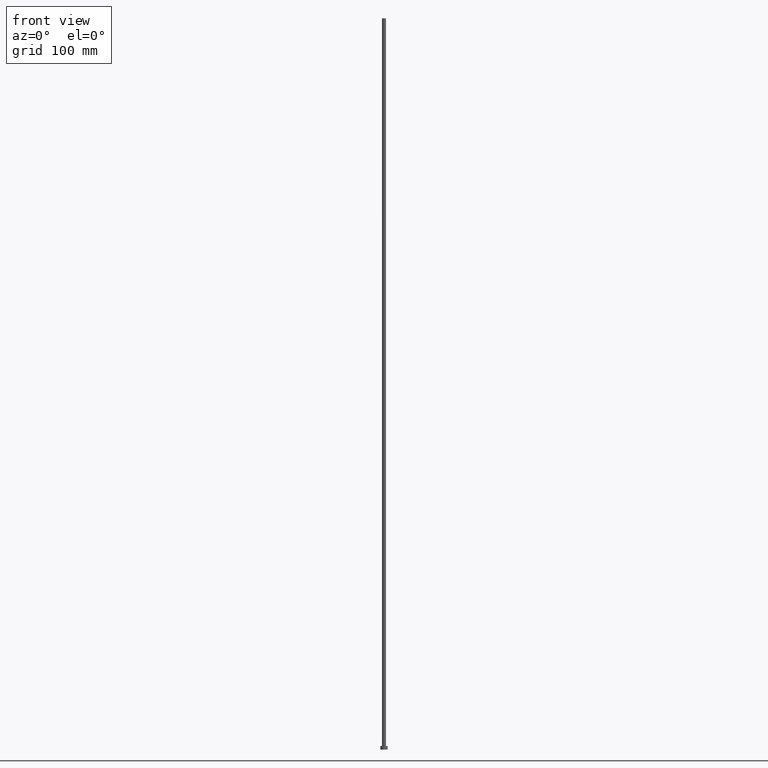
[diagram: clean part render]
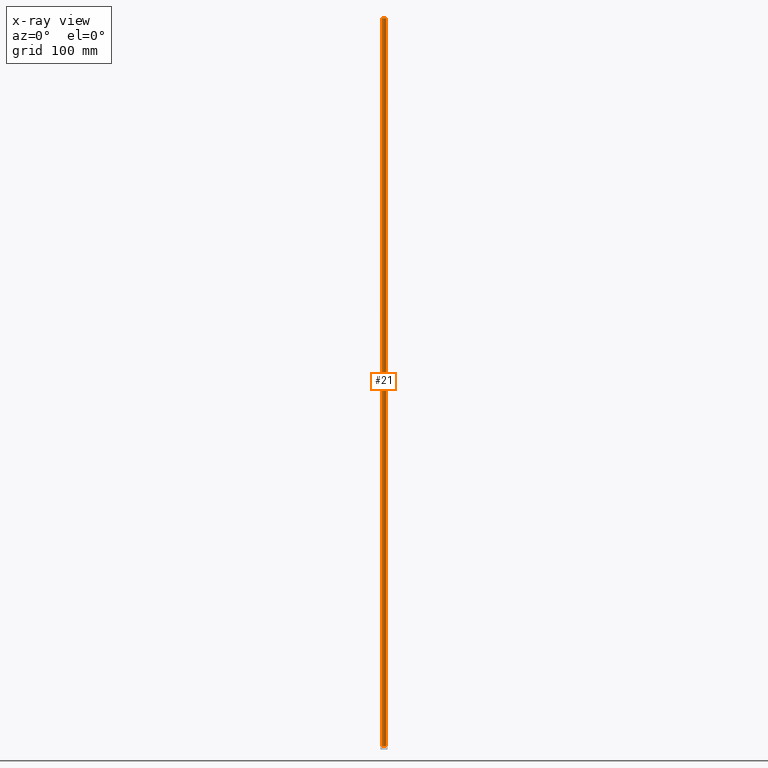
[diagram: x-ray — body ghosted, one internal face saturated and labeled with its STEP entity id]
A machine part, front view, then the same camera in x-ray: the body is ghosted and one INTERNAL B-rep face — a face not visible from any outside direction — is saturated and labeled: STEP entity #21.
In plain terms, the highlighted cylindrical surface (edge-blend (fillet) strip) has radius 2.75 mm, axis along (-0, -0, -1).
Its self-contained STEP definition (entity closure, byte-faithful):
#5 = VERTEX_POINT ( 'NONE', #255 ) ;
#11 = ORIENTED_EDGE ( 'NONE', *, *, #248, .T. ) ;
#12 = DIRECTION ( 'NONE',  ( 1.000000000000000000, 0.000000000000000000, 0.000000000000000000 ) ) ;
#17 = CARTESIAN_POINT ( 'NONE',  ( 0.000000000000000000, 0.000000000000000000, 1000.000000000000000 ) ) ;
#21 = ADVANCED_FACE ( 'NONE', ( #155 ), #252, .T. ) ;
#28 = CIRCLE ( 'NONE', #220, 2.750000000000000000 ) ;
#37 = AXIS2_PLACEMENT_3D ( 'NONE', #17, #237, #61 ) ;
#38 = CARTESIAN_POINT ( 'NONE',  ( 2.750000000000000000, 3.367778697655220519E-16, 1000.000000000000000 ) ) ;
#61 = DIRECTION ( 'NONE',  ( -1.000000000000000000, 0.000000000000000000, 0.000000000000000000 ) ) ;
#74 = DIRECTION ( 'NONE',  ( -0.000000000000000000, -0.000000000000000000, -1.000000000000000000 ) ) ;
#78 = EDGE_LOOP ( 'NONE', ( #212, #151, #11, #113 ) ) ;
#80 = VERTEX_POINT ( 'NONE', #157 ) ;
#91 = VERTEX_POINT ( 'NONE', #96 ) ;
#95 = AXIS2_PLACEMENT_3D ( 'NONE', #244, #247, #12 ) ;
#96 = CARTESIAN_POINT ( 'NONE',  ( 2.750000000000000000, 3.367778697655220519E-16, 1000.000000000000000 ) ) ;
#98 = DIRECTION ( 'NONE',  ( 0.000000000000000000, 0.000000000000000000, 1.000000000000000000 ) ) ;
#103 = EDGE_CURVE ( 'NONE', #192, #80, #171, .T. ) ;
#113 = ORIENTED_EDGE ( 'NONE', *, *, #103, .F. ) ;
#119 = CARTESIAN_POINT ( 'NONE',  ( -2.750000000000000000, 0.000000000000000000, 1000.000000000000000 ) ) ;
#122 = EDGE_CURVE ( 'NONE', #91, #192, #28, .T. ) ;
#147 = VECTOR ( 'NONE', #217, 1000.000000000000000 ) ;
#150 = EDGE_CURVE ( 'NONE', #91, #5, #213, .T. ) ;
#151 = ORIENTED_EDGE ( 'NONE', *, *, #150, .T. ) ;
#155 = FACE_OUTER_BOUND ( 'NONE', #78, .T. ) ;
#157 = CARTESIAN_POINT ( 'NONE',  ( -2.750000000000000000, 0.000000000000000000, 5.000000000000000000 ) ) ;
#171 = LINE ( 'NONE', #250, #228 ) ;
#173 = DIRECTION ( 'NONE',  ( 1.000000000000000000, 0.000000000000000000, 0.000000000000000000 ) ) ;
#192 = VERTEX_POINT ( 'NONE', #119 ) ;
#197 = CARTESIAN_POINT ( 'NONE',  ( 0.000000000000000000, 0.000000000000000000, 1000.000000000000000 ) ) ;
#205 = CIRCLE ( 'NONE', #95, 2.750000000000000000 ) ;
#212 = ORIENTED_EDGE ( 'NONE', *, *, #122, .F. ) ;
#213 = LINE ( 'NONE', #38, #147 ) ;
#217 = DIRECTION ( 'NONE',  ( -0.000000000000000000, -0.000000000000000000, -1.000000000000000000 ) ) ;
#220 = AXIS2_PLACEMENT_3D ( 'NONE', #197, #98, #173 ) ;
#228 = VECTOR ( 'NONE', #74, 1000.000000000000000 ) ;
#237 = DIRECTION ( 'NONE',  ( -0.000000000000000000, -0.000000000000000000, -1.000000000000000000 ) ) ;
#244 = CARTESIAN_POINT ( 'NONE',  ( 0.000000000000000000, 0.000000000000000000, 5.000000000000000000 ) ) ;
#247 = DIRECTION ( 'NONE',  ( 0.000000000000000000, 0.000000000000000000, 1.000000000000000000 ) ) ;
#248 = EDGE_CURVE ( 'NONE', #5, #80, #205, .T. ) ;
#250 = CARTESIAN_POINT ( 'NONE',  ( -2.750000000000000000, 0.000000000000000000, 1000.000000000000000 ) ) ;
#252 = CYLINDRICAL_SURFACE ( 'NONE', #37, 2.750000000000000000 ) ;
#255 = CARTESIAN_POINT ( 'NONE',  ( 2.750000000000000000, 3.367778697655220519E-16, 5.000000000000000000 ) ) ;